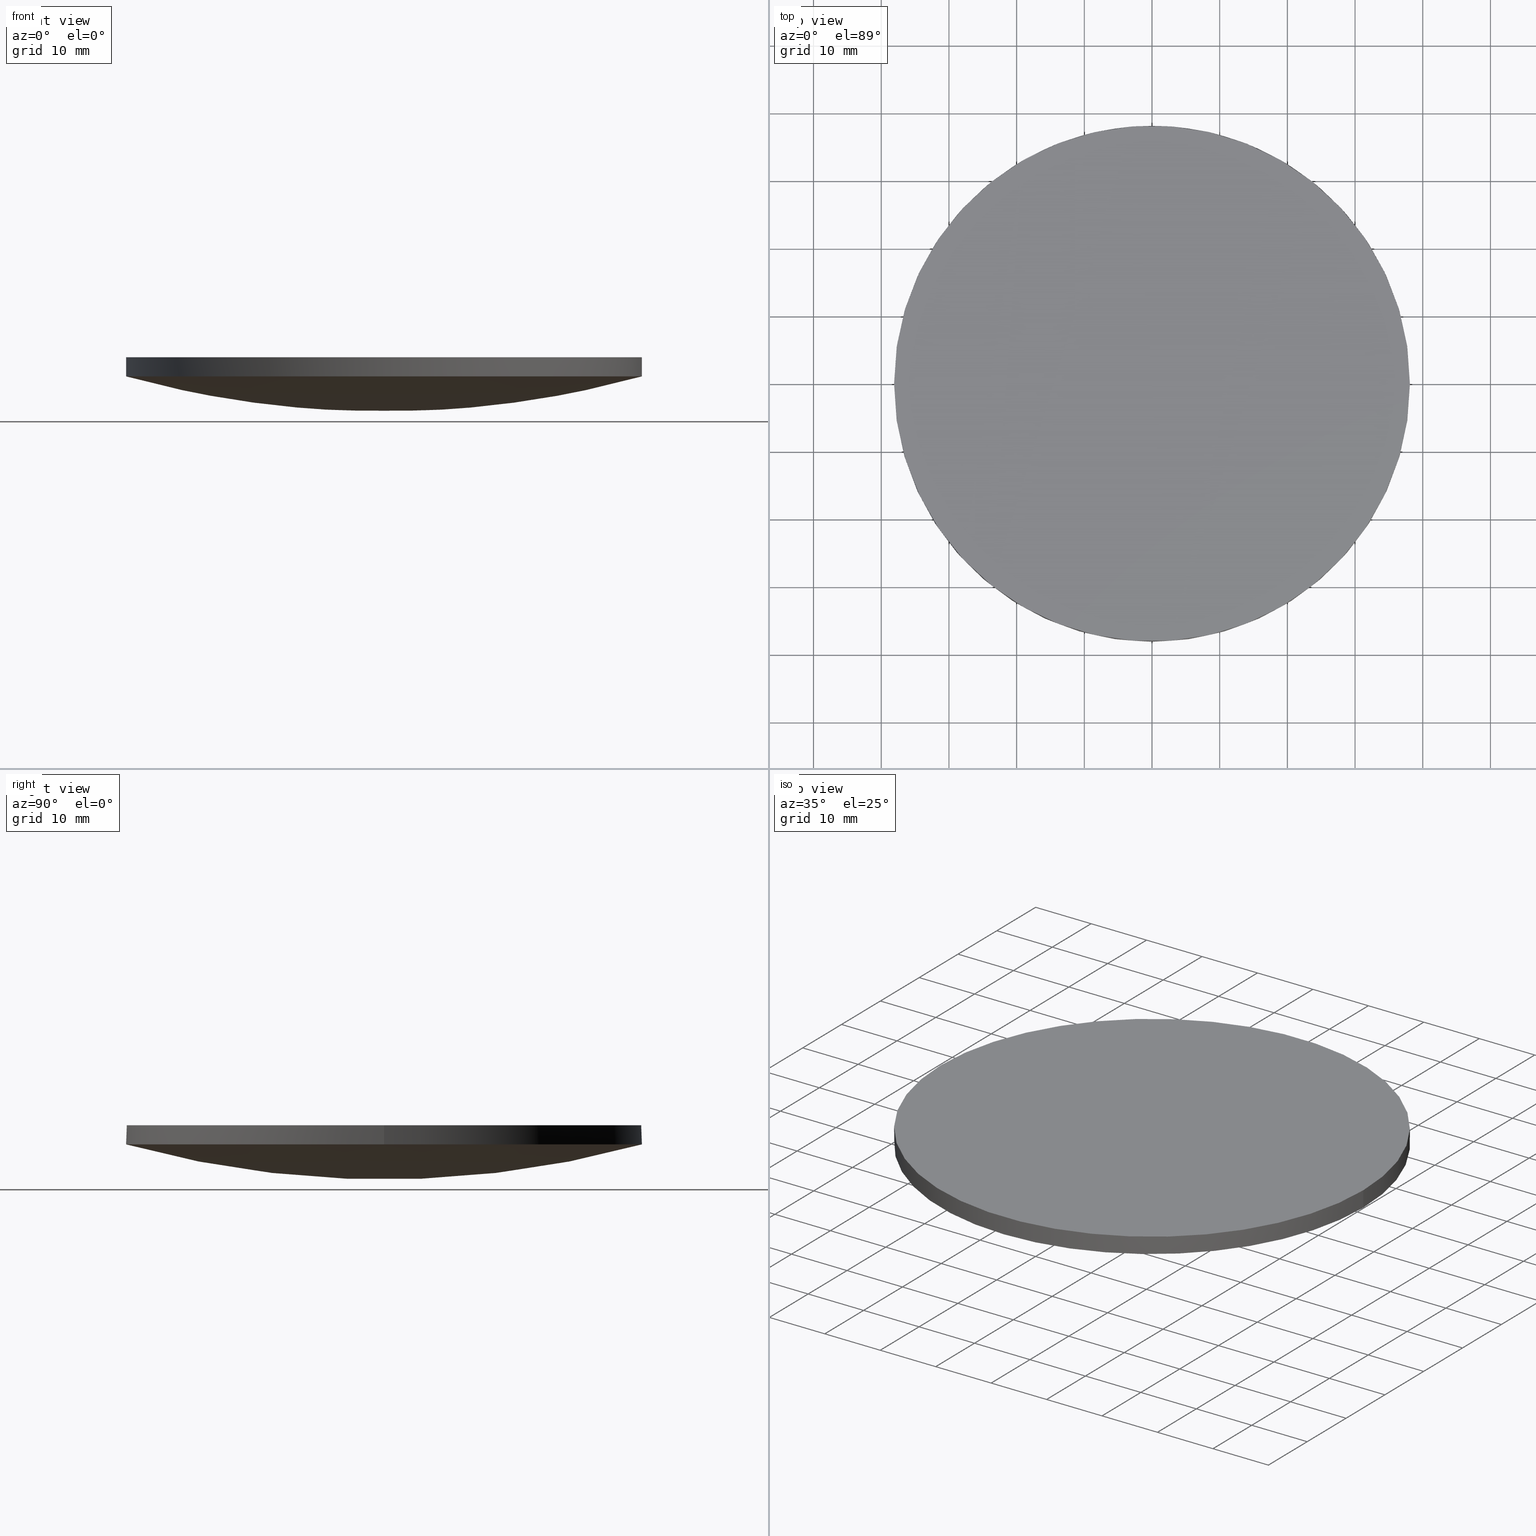
[diagram: canonical four-view strip — front | top / right | iso, engineering-drawing reading convention]
A machine part, canonical four-view strip (front | top / right | iso — engineering-drawing reading convention). The complete STEP part file that produces these views, byte-faithful:
ISO-10303-21;
HEADER;
FILE_DESCRIPTION (( 'STEP AP203' ),
    '1' );
FILE_NAME ('110-1719E UVFS pl-cx 76.2 F300.STEP',
    '2018-12-13T15:13:02',
    ( '' ),
    ( '' ),
    'SwSTEP 2.0',
    'SolidWorks 2017',
    '' );
FILE_SCHEMA (( 'CONFIG_CONTROL_DESIGN' ));
ENDSEC;

DATA;
#1 = ORIENTED_EDGE ( 'NONE', *, *, #95, .T. ) ;
#2 = LOCAL_TIME ( 17, 13, 2.000000000000000000, #154 ) ;
#3 = CC_DESIGN_SECURITY_CLASSIFICATION ( #152, ( #25 ) ) ;
#4 = CARTESIAN_POINT ( 'NONE',  ( -38.10000000000000900, 2.889547465351166000E-015, 5.176491833698710500 ) ) ;
#5 = COORDINATED_UNIVERSAL_TIME_OFFSET ( 2, 0, .AHEAD. ) ;
#6 = AXIS2_PLACEMENT_3D ( 'NONE', #21, #32, #171 ) ;
#7 = CC_DESIGN_PERSON_AND_ORGANIZATION_ASSIGNMENT ( #20, #70, ( #25 ) ) ;
#8 = MECHANICAL_CONTEXT ( 'NONE', #205, 'mechanical' ) ;
#9 = CARTESIAN_POINT ( 'NONE',  ( 38.80917554072667000, -13.17463516135470900, 3.493141128107163600 ) ) ;
#10 = FACE_OUTER_BOUND ( 'NONE', #180, .T. ) ;
#11 = CARTESIAN_POINT ( 'NONE',  ( 2.827845306181674800E-014, -38.54582829949171700, 5.300694108275216400 ) ) ;
#12 = APPROVAL_PERSON_ORGANIZATION ( #69, #163, #49 ) ;
#13 = CARTESIAN_POINT ( 'NONE',  ( -13.13738015587854400, 13.17463516135467600, -1.811732009904365200 ) ) ;
#14 = DIRECTION ( 'NONE',  ( 1.000000000000000000, 0.0000000000000000000, -2.276539994720219300E-017 ) ) ;
#15 = DIRECTION ( 'NONE',  ( 1.000000000000000000, 0.0000000000000000000, -4.553079989440438700E-017 ) ) ;
#16 = ORIENTED_EDGE ( 'NONE', *, *, #68, .F. ) ;
#17 = DATE_AND_TIME ( #78, #135 ) ;
#18 = CARTESIAN_POINT ( 'NONE',  ( 2.830399681397611900E-014, 38.09999999999993700, 5.176491833698705100 ) ) ;
#19 = CC_DESIGN_PERSON_AND_ORGANIZATION_ASSIGNMENT ( #35, #127, ( #79 ) ) ;
#20 = PERSON_AND_ORGANIZATION ( #72, #56 ) ;
#21 = CARTESIAN_POINT ( 'NONE',  ( -9.325873406851310200E-015, -1.776356839400250100E-015, 5.176491833698710500 ) ) ;
#22 = CC_DESIGN_APPROVAL ( #220, ( #152 ) ) ;
#23 = APPROVAL_PERSON_ORGANIZATION ( #132, #182, #30 ) ;
#24 = CARTESIAN_POINT ( 'NONE',  ( 38.09999999999999400, -1.776356839400250100E-015, 5.176491833698709600 ) ) ;
#25 = PRODUCT_DEFINITION_FORMATION_WITH_SPECIFIED_SOURCE ( 'ANY', '', #130, .NOT_KNOWN. ) ;
#26 = ORIENTED_EDGE ( 'NONE', *, *, #178, .T. ) ;
#27 = CARTESIAN_POINT ( 'NONE',  ( -9.325873406851310200E-015, -1.776356839400250100E-015, 5.176491833698710500 ) ) ;
#28 = ADVANCED_FACE ( 'NONE', ( #87 ), #71, .T. ) ;
#29 = ORIENTED_EDGE ( 'NONE', *, *, #209, .T. ) ;
#30 = APPROVAL_ROLE ( '' ) ;
#31 = SECURITY_CLASSIFICATION_LEVEL ( 'unclassified' ) ;
#32 = DIRECTION ( 'NONE',  ( -2.331176954593499900E-017, -1.086877198725570000E-033, -1.000000000000000000 ) ) ;
#33 = CC_DESIGN_APPROVAL ( #182, ( #25 ) ) ;
#34 = CARTESIAN_POINT ( 'NONE',  ( 38.09999999999999400, -1.776356839400250100E-015, 7.999999999999998200 ) ) ;
#35 = PERSON_AND_ORGANIZATION ( #72, #56 ) ;
#36 = VERTEX_POINT ( 'NONE', #24 ) ;
#37 = ORIENTED_EDGE ( 'NONE', *, *, #164, .T. ) ;
#38 = CARTESIAN_POINT ( 'NONE',  ( -36.90042726764757900, -38.54582829949171700, 10.34465813652077400 ) ) ;
#39 = DATE_AND_TIME ( #47, #93 ) ;
#40 = LINE ( 'NONE', #4, #105 ) ;
#41 = CARTESIAN_POINT ( 'NONE',  ( -9.260052435167430000E-015, -1.776356839400250100E-015, 8.000000000000000000 ) ) ;
#42 = DIRECTION ( 'NONE',  ( -2.331176954593499900E-017, -1.086877198725570000E-033, -1.000000000000000000 ) ) ;
#43 = CARTESIAN_POINT ( 'NONE',  ( -38.80917554072667000, 13.17463516135467700, 3.493141128107184900 ) ) ;
#44 = ADVANCED_FACE ( 'NONE', ( #199 ), #195, .T. ) ;
#45 = EDGE_CURVE ( 'NONE', #170, #74, #94, .T. ) ;
#46 = ADVANCED_FACE ( 'NONE', ( #165 ), #124, .T. ) ;
#47 = CALENDAR_DATE ( 2018, 13, 12 ) ;
#48 = DATE_AND_TIME ( #187, #202 ) ;
#49 = APPROVAL_ROLE ( '' ) ;
#50 = APPLICATION_CONTEXT ( 'configuration controlled 3d designs of mechanical parts and assemblies' ) ;
#51 = CARTESIAN_POINT ( 'NONE',  ( -9.260052435167430000E-015, -1.776356839400250100E-015, 8.000000000000000000 ) ) ;
#52 = PERSON_AND_ORGANIZATION_ROLE ( 'classification_officer' ) ;
#53 = VERTEX_POINT ( 'NONE', #155 ) ;
#54 = DATE_AND_TIME ( #143, #2 ) ;
#55 =( LENGTH_UNIT ( ) NAMED_UNIT ( * ) SI_UNIT ( .MILLI., .METRE. ) );
#56 = ORGANIZATION ( 'UNSPECIFIED', 'UNSPECIFIED', '' ) ;
#57 = CC_DESIGN_DATE_AND_TIME_ASSIGNMENT ( #54, #186, ( #152 ) ) ;
#58 = CARTESIAN_POINT ( 'NONE',  ( 0.0000000000000000000, -2.842170943040400100E-014, 142.8000000000000100 ) ) ;
#59 = CARTESIAN_POINT ( 'NONE',  ( 2.827845306181674200E-014, 38.54582829949168100, 5.300694108275244800 ) ) ;
#60 = CYLINDRICAL_SURFACE ( 'NONE', #134, 38.10000000000000100 ) ;
#61 = CARTESIAN_POINT ( 'NONE',  ( 0.0000000000000000000, -38.54582829949171700, 5.300694108275216400 ) ) ;
#62 = CARTESIAN_POINT ( 'NONE',  ( -24.86740508091239800, 38.54582829949168900, 6.992406322703711700 ) ) ;
#63 = CLOSED_SHELL ( 'NONE', ( #28, #147, #46, #67, #44 ) ) ;
#64 = ORIENTED_EDGE ( 'NONE', *, *, #164, .F. ) ;
#65 = COORDINATED_UNIVERSAL_TIME_OFFSET ( 2, 0, .AHEAD. ) ;
#66 = APPLICATION_PROTOCOL_DEFINITION ( 'international standard', 'config_control_design', 1994, #50 ) ;
#67 = ADVANCED_FACE ( 'NONE', ( #10 ), #200, .T. ) ;
#68 = EDGE_CURVE ( 'NONE', #191, #185, #136, .T. ) ;
#69 = PERSON_AND_ORGANIZATION ( #72, #56 ) ;
#70 = PERSON_AND_ORGANIZATION_ROLE ( 'design_supplier' ) ;
#71 =( BOUNDED_SURFACE ( )  B_SPLINE_SURFACE ( 3, 3, ( 
 ( #11, #222, #193, #151 ),
 ( #207, #75, #112, #9 ),
 ( #131, #92, #224, #116 ),
 ( #59, #99, #210, #198 ) ),
 .UNSPECIFIED., .F., .F., .T. ) 
 B_SPLINE_SURFACE_WITH_KNOTS ( ( 4, 4 ),
 ( 4, 4 ),
 ( 0.0000000000000000000, 1.000000000000000000 ),
 ( 0.0000000000000000000, 1.000000000000000000 ),
 .UNSPECIFIED. ) 
 GEOMETRIC_REPRESENTATION_ITEM ( )  RATIONAL_B_SPLINE_SURFACE ( (
 ( 1.000000000000000000, 0.9938577781780347800, 0.9938577781780347800, 1.000000000000000000),
 ( 0.9752535289062782600, 0.9692633053990815700, 0.9692633053990815700, 0.9752535289062782600),
 ( 0.9752535289062782600, 0.9692633053990815700, 0.9692633053990815700, 0.9752535289062782600),
 ( 1.000000000000000000, 0.9938577781780347800, 0.9938577781780347800, 1.000000000000000000) ) ) 
 REPRESENTATION_ITEM ( '' )  SURFACE ( )  );
#72 = PERSON ( 'UNSPECIFIED', 'UNSPECIFIED', 'UNSPECIFIED', ('UNSPECIFIED'), ('UNSPECIFIED'), ('UNSPECIFIED') ) ;
#73 =( NAMED_UNIT ( * ) SI_UNIT ( $, .STERADIAN. ) SOLID_ANGLE_UNIT ( ) );
#74 = VERTEX_POINT ( 'NONE', #18 ) ;
#75 = CARTESIAN_POINT ( 'NONE',  ( 13.13738015587856700, -13.17463516135471300, -1.811732009904391000 ) ) ;
#76 = CIRCLE ( 'NONE', #6, 38.10000000000000100 ) ;
#77 = EDGE_LOOP ( 'NONE', ( #129, #221, #214 ) ) ;
#78 = CALENDAR_DATE ( 2018, 13, 12 ) ;
#79 = PRODUCT_DEFINITION ( 'UNKNOWN', '', #25, #176 ) ;
#80 = DIRECTION ( 'NONE',  ( 2.331176954593499900E-017, 1.086877198725570000E-033, 1.000000000000000000 ) ) ;
#81 = ORIENTED_EDGE ( 'NONE', *, *, #68, .T. ) ;
#82 = CARTESIAN_POINT ( 'NONE',  ( 38.09999999999999400, -1.776356839400250100E-015, 5.176491833698708700 ) ) ;
#83 = DIRECTION ( 'NONE',  ( 1.000000000000000000, 0.0000000000000000000, -2.276539994720219300E-017 ) ) ;
#84 = APPROVAL_PERSON_ORGANIZATION ( #97, #220, #166 ) ;
#85 = DIRECTION ( 'NONE',  ( 1.000000000000000000, 0.0000000000000000000, -2.276539994720219300E-017 ) ) ;
#86 = PERSON_AND_ORGANIZATION ( #72, #56 ) ;
#87 = FACE_OUTER_BOUND ( 'NONE', #142, .T. ) ;
#88 = PERSON_AND_ORGANIZATION ( #72, #56 ) ;
#89 = APPROVAL_STATUS ( 'not_yet_approved' ) ;
#90 = PRODUCT_RELATED_PRODUCT_CATEGORY ( 'detail', '', ( #130 ) ) ;
#91 = DIRECTION ( 'NONE',  ( -2.331176954593499900E-017, -1.086877198725570000E-033, -1.000000000000000000 ) ) ;
#92 = CARTESIAN_POINT ( 'NONE',  ( 13.13738015587856400, 13.17463516135467600, -1.811732009904365200 ) ) ;
#93 = LOCAL_TIME ( 17, 13, 2.000000000000000000, #5 ) ;
#94 = CIRCLE ( 'NONE', #172, 142.7999999999999800 ) ;
#95 = EDGE_CURVE ( 'NONE', #36, #191, #227, .T. ) ;
#96 = DIRECTION ( 'NONE',  ( 0.0000000000000000000, 0.0000000000000000000, 1.000000000000000000 ) ) ;
#97 = PERSON_AND_ORGANIZATION ( #72, #56 ) ;
#98 = CC_DESIGN_APPROVAL ( #163, ( #79 ) ) ;
#99 = CARTESIAN_POINT ( 'NONE',  ( 12.49124554116607500, 38.54582829949168900, 5.300694108275247500 ) ) ;
#100 = ADVANCED_BREP_SHAPE_REPRESENTATION ( '110-1719E UVFS pl-cx 76.2 F300', ( #114, #113 ), #234 ) ;
#101 = CARTESIAN_POINT ( 'NONE',  ( -9.325873406851310200E-015, -1.776356839400250100E-015, 5.176491833698709600 ) ) ;
#102 = CARTESIAN_POINT ( 'NONE',  ( -36.90042726764757200, 38.54582829949168100, 10.34465813652080100 ) ) ;
#103 = ORIENTED_EDGE ( 'NONE', *, *, #115, .F. ) ;
#104 = DIRECTION ( 'NONE',  ( 2.331176954593499900E-017, 1.086877198725570000E-033, 1.000000000000000000 ) ) ;
#105 = VECTOR ( 'NONE', #104, 1000.000000000000000 ) ;
#106 = APPROVAL_STATUS ( 'not_yet_approved' ) ;
#107 = APPROVAL_DATE_TIME ( #39, #163 ) ;
#108 = PERSON_AND_ORGANIZATION_ROLE ( 'creator' ) ;
#109 = CARTESIAN_POINT ( 'NONE',  ( 0.0000000000000000000, 0.0000000000000000000, 0.0000000000000000000 ) ) ;
#110 = APPLICATION_PROTOCOL_DEFINITION ( 'international standard', 'config_control_design', 1994, #205 ) ;
#111 = CIRCLE ( 'NONE', #197, 38.10000000000000100 ) ;
#112 = CARTESIAN_POINT ( 'NONE',  ( 26.15372125714176100, -13.17463516135471300, -0.03251260363729612700 ) ) ;
#113 = AXIS2_PLACEMENT_3D ( 'NONE', #109, #218, #219 ) ;
#114 = MANIFOLD_SOLID_BREP ( 'Imported1', #63 ) ;
#115 = EDGE_CURVE ( 'NONE', #53, #74, #158, .T. ) ;
#116 = CARTESIAN_POINT ( 'NONE',  ( 38.80917554072666300, 13.17463516135467700, 3.493141128107187100 ) ) ;
#117 = ORIENTED_EDGE ( 'NONE', *, *, #209, .F. ) ;
#118 = CC_DESIGN_DATE_AND_TIME_ASSIGNMENT ( #48, #149, ( #79 ) ) ;
#119 = CARTESIAN_POINT ( 'NONE',  ( -26.15372125714175800, -13.17463516135471300, -0.03251260363730351000 ) ) ;
#120 = CARTESIAN_POINT ( 'NONE',  ( -12.49124554116605900, -38.54582829949172400, 5.300694108275216400 ) ) ;
#121 = AXIS2_PLACEMENT_3D ( 'NONE', #137, #80, #231 ) ;
#122 = CALENDAR_DATE ( 2018, 13, 12 ) ;
#123 = DIRECTION ( 'NONE',  ( 2.331176954593499900E-017, 1.086877198725570000E-033, 1.000000000000000000 ) ) ;
#124 =( BOUNDED_SURFACE ( )  B_SPLINE_SURFACE ( 3, 3, ( 
 ( #38, #157, #120, #61 ),
 ( #216, #119, #183, #179 ),
 ( #43, #235, #13, #184 ),
 ( #102, #62, #160, #139 ) ),
 .UNSPECIFIED., .F., .F., .F. ) 
 B_SPLINE_SURFACE_WITH_KNOTS ( ( 4, 4 ),
 ( 4, 4 ),
 ( 0.0000000000000000000, 1.000000000000000000 ),
 ( 0.0000000000000000000, 1.000000000000000000 ),
 .UNSPECIFIED. ) 
 GEOMETRIC_REPRESENTATION_ITEM ( )  RATIONAL_B_SPLINE_SURFACE ( (
 ( 1.000000000000000000, 0.9938577781780347800, 0.9938577781780347800, 1.000000000000000000),
 ( 0.9752535289062782600, 0.9692633053990815700, 0.9692633053990815700, 0.9752535289062782600),
 ( 0.9752535289062782600, 0.9692633053990815700, 0.9692633053990815700, 0.9752535289062782600),
 ( 1.000000000000000000, 0.9938577781780347800, 0.9938577781780347800, 1.000000000000000000) ) ) 
 REPRESENTATION_ITEM ( '' )  SURFACE ( )  );
#125 = EDGE_CURVE ( 'NONE', #170, #53, #111, .T. ) ;
#126 = CARTESIAN_POINT ( 'NONE',  ( -38.10000000000000900, 2.889547465351166000E-015, 8.000000000000001800 ) ) ;
#127 = PERSON_AND_ORGANIZATION_ROLE ( 'creator' ) ;
#128 = PERSON_AND_ORGANIZATION_ROLE ( 'design_owner' ) ;
#129 = ORIENTED_EDGE ( 'NONE', *, *, #45, .F. ) ;
#130 = PRODUCT ( '110-1719E UVFS pl-cx 76.2 F300', '110-1719E UVFS pl-cx 76.2 F300', '', ( #8 ) ) ;
#131 = CARTESIAN_POINT ( 'NONE',  ( 2.974121250510412600E-014, 13.17463516135467700, -1.811732009904367700 ) ) ;
#132 = PERSON_AND_ORGANIZATION ( #72, #56 ) ;
#133 = ORIENTED_EDGE ( 'NONE', *, *, #95, .F. ) ;
#134 = AXIS2_PLACEMENT_3D ( 'NONE', #101, #123, #83 ) ;
#135 = LOCAL_TIME ( 17, 13, 2.000000000000000000, #229 ) ;
#136 = CIRCLE ( 'NONE', #167, 38.10000000000000100 ) ;
#137 = CARTESIAN_POINT ( 'NONE',  ( -9.325873406851310200E-015, -1.776356839400250100E-015, 5.176491833698709600 ) ) ;
#138 = ORIENTED_EDGE ( 'NONE', *, *, #45, .T. ) ;
#139 = CARTESIAN_POINT ( 'NONE',  ( 0.0000000000000000000, 38.54582829949168100, 5.300694108275246600 ) ) ;
#140 = CARTESIAN_POINT ( 'NONE',  ( -9.325873406851310200E-015, -1.776356839400250100E-015, 5.176491833698710500 ) ) ;
#141 = DIRECTION ( 'NONE',  ( -2.331176954593499900E-017, -1.086877198725570000E-033, -1.000000000000000000 ) ) ;
#142 = EDGE_LOOP ( 'NONE', ( #228, #138, #29 ) ) ;
#143 = CALENDAR_DATE ( 2018, 13, 12 ) ;
#144 = CARTESIAN_POINT ( 'NONE',  ( 2.830399681397611900E-014, -38.09999999999996600, 5.176491833698705100 ) ) ;
#145 = SHAPE_DEFINITION_REPRESENTATION ( #226, #100 ) ;
#146 = LOCAL_TIME ( 17, 13, 2.000000000000000000, #65 ) ;
#147 = ADVANCED_FACE ( 'NONE', ( #213 ), #60, .T. ) ;
#148 = UNCERTAINTY_MEASURE_WITH_UNIT (LENGTH_MEASURE( 1.000000000000000100E-005 ), #55, 'distance_accuracy_value', 'NONE');
#149 = DATE_TIME_ROLE ( 'creation_date' ) ;
#150 = VECTOR ( 'NONE', #181, 1000.000000000000000 ) ;
#151 = CARTESIAN_POINT ( 'NONE',  ( 36.90042726764757900, -38.54582829949171700, 10.34465813652077900 ) ) ;
#152 = SECURITY_CLASSIFICATION ( '', '', #31 ) ;
#153 = ORIENTED_EDGE ( 'NONE', *, *, #212, .F. ) ;
#154 = COORDINATED_UNIVERSAL_TIME_OFFSET ( 2, 0, .AHEAD. ) ;
#155 = CARTESIAN_POINT ( 'NONE',  ( -38.10000000000000900, 2.889547465351166000E-015, 5.176491833698711400 ) ) ;
#156 = DIRECTION ( 'NONE',  ( 1.000000000000000000, 0.0000000000000000000, -0.0000000000000000000 ) ) ;
#157 = CARTESIAN_POINT ( 'NONE',  ( -24.86740508091240500, -38.54582829949172400, 6.992406322703684100 ) ) ;
#158 = CIRCLE ( 'NONE', #225, 38.10000000000000100 ) ;
#159 = DIRECTION ( 'NONE',  ( 0.0000000000000000000, -1.000000000000000000, 0.0000000000000000000 ) ) ;
#160 = CARTESIAN_POINT ( 'NONE',  ( -12.49124554116605500, 38.54582829949168900, 5.300694108275246600 ) ) ;
#161 = ORIENTED_EDGE ( 'NONE', *, *, #178, .F. ) ;
#162 = DIRECTION ( 'NONE',  ( 1.000000000000000000, 0.0000000000000000000, 2.056625150099659900E-016 ) ) ;
#163 = APPROVAL ( #106, 'UNSPECIFIED' ) ;
#164 = EDGE_CURVE ( 'NONE', #53, #185, #40, .T. ) ;
#165 = FACE_OUTER_BOUND ( 'NONE', #77, .T. ) ;
#166 = APPROVAL_ROLE ( '' ) ;
#167 = AXIS2_PLACEMENT_3D ( 'NONE', #41, #201, #15 ) ;
#168 = DIRECTION ( 'NONE',  ( 1.000000000000000000, 0.0000000000000000000, -2.276539994720219300E-017 ) ) ;
#169 = CIRCLE ( 'NONE', #217, 38.10000000000000100 ) ;
#170 = VERTEX_POINT ( 'NONE', #144 ) ;
#171 = DIRECTION ( 'NONE',  ( 1.000000000000000000, 0.0000000000000000000, -2.276539994720219300E-017 ) ) ;
#172 = AXIS2_PLACEMENT_3D ( 'NONE', #58, #162, #159 ) ;
#173 = EDGE_LOOP ( 'NONE', ( #16, #161 ) ) ;
#174 = DATE_AND_TIME ( #122, #146 ) ;
#175 = AXIS2_PLACEMENT_3D ( 'NONE', #51, #91, #188 ) ;
#176 = DESIGN_CONTEXT ( 'detailed design', #50, 'design' ) ;
#177 = AXIS2_PLACEMENT_3D ( 'NONE', #230, #96, #156 ) ;
#178 = EDGE_CURVE ( 'NONE', #185, #191, #206, .T. ) ;
#179 = CARTESIAN_POINT ( 'NONE',  ( 0.0000000000000000000, -13.17463516135470900, -1.811732009904391600 ) ) ;
#180 = EDGE_LOOP ( 'NONE', ( #64, #194, #153, #1, #81 ) ) ;
#181 = DIRECTION ( 'NONE',  ( 2.331176954593499900E-017, 1.086877198725570000E-033, 1.000000000000000000 ) ) ;
#182 = APPROVAL ( #89, 'UNSPECIFIED' ) ;
#183 = CARTESIAN_POINT ( 'NONE',  ( -13.13738015587854600, -13.17463516135471300, -1.811732009904391400 ) ) ;
#184 = CARTESIAN_POINT ( 'NONE',  ( 0.0000000000000000000, 13.17463516135467700, -1.811732009904365700 ) ) ;
#185 = VERTEX_POINT ( 'NONE', #126 ) ;
#186 = DATE_TIME_ROLE ( 'classification_date' ) ;
#187 = CALENDAR_DATE ( 2018, 13, 12 ) ;
#188 = DIRECTION ( 'NONE',  ( 1.000000000000000000, 0.0000000000000000000, -4.553079989440438700E-017 ) ) ;
#189 =( NAMED_UNIT ( * ) PLANE_ANGLE_UNIT ( ) SI_UNIT ( $, .RADIAN. ) );
#190 = CARTESIAN_POINT ( 'NONE',  ( -9.325873406851310200E-015, -1.776356839400250100E-015, 5.176491833698710500 ) ) ;
#191 = VERTEX_POINT ( 'NONE', #34 ) ;
#192 = APPROVAL_DATE_TIME ( #17, #220 ) ;
#193 = CARTESIAN_POINT ( 'NONE',  ( 24.86740508091241300, -38.54582829949172400, 6.992406322703691200 ) ) ;
#194 = ORIENTED_EDGE ( 'NONE', *, *, #125, .F. ) ;
#195 = PLANE ( 'NONE',  #177 ) ;
#196 = CC_DESIGN_PERSON_AND_ORGANIZATION_ASSIGNMENT ( #88, #108, ( #25 ) ) ;
#197 = AXIS2_PLACEMENT_3D ( 'NONE', #140, #141, #85 ) ;
#198 = CARTESIAN_POINT ( 'NONE',  ( 36.90042726764757200, 38.54582829949168100, 10.34465813652080400 ) ) ;
#199 = FACE_OUTER_BOUND ( 'NONE', #173, .T. ) ;
#200 = CYLINDRICAL_SURFACE ( 'NONE', #121, 38.10000000000000100 ) ;
#201 = DIRECTION ( 'NONE',  ( -2.331176954593499900E-017, -1.086877198725570000E-033, -1.000000000000000000 ) ) ;
#202 = LOCAL_TIME ( 17, 13, 2.000000000000000000, #232 ) ;
#203 = APPROVAL_STATUS ( 'not_yet_approved' ) ;
#204 = DIRECTION ( 'NONE',  ( -2.331176954593499900E-017, -1.086877198725570000E-033, -1.000000000000000000 ) ) ;
#205 = APPLICATION_CONTEXT ( 'configuration controlled 3d designs of mechanical parts and assemblies' ) ;
#206 = CIRCLE ( 'NONE', #175, 38.10000000000000100 ) ;
#207 = CARTESIAN_POINT ( 'NONE',  ( 2.974121250510413300E-014, -13.17463516135470900, -1.811732009904393400 ) ) ;
#208 = EDGE_LOOP ( 'NONE', ( #103, #37, #26, #133, #117 ) ) ;
#209 = EDGE_CURVE ( 'NONE', #74, #36, #169, .T. ) ;
#210 = CARTESIAN_POINT ( 'NONE',  ( 24.86740508091240900, 38.54582829949168900, 6.992406322703717900 ) ) ;
#211 = PERSON_AND_ORGANIZATION ( #72, #56 ) ;
#212 = EDGE_CURVE ( 'NONE', #36, #170, #76, .T. ) ;
#213 = FACE_OUTER_BOUND ( 'NONE', #208, .T. ) ;
#214 = ORIENTED_EDGE ( 'NONE', *, *, #115, .T. ) ;
#215 = APPROVAL_DATE_TIME ( #174, #182 ) ;
#216 = CARTESIAN_POINT ( 'NONE',  ( -38.80917554072667700, -13.17463516135470900, 3.493141128107159200 ) ) ;
#217 = AXIS2_PLACEMENT_3D ( 'NONE', #190, #204, #168 ) ;
#218 = DIRECTION ( 'NONE',  ( 0.0000000000000000000, 0.0000000000000000000, 1.000000000000000000 ) ) ;
#219 = DIRECTION ( 'NONE',  ( 1.000000000000000000, 0.0000000000000000000, 0.0000000000000000000 ) ) ;
#220 = APPROVAL ( #203, 'UNSPECIFIED' ) ;
#221 = ORIENTED_EDGE ( 'NONE', *, *, #125, .T. ) ;
#222 = CARTESIAN_POINT ( 'NONE',  ( 12.49124554116607700, -38.54582829949172400, 5.300694108275219000 ) ) ;
#223 = CC_DESIGN_PERSON_AND_ORGANIZATION_ASSIGNMENT ( #211, #52, ( #152 ) ) ;
#224 = CARTESIAN_POINT ( 'NONE',  ( 26.15372125714175800, 13.17463516135467600, -0.03251260363727141000 ) ) ;
#225 = AXIS2_PLACEMENT_3D ( 'NONE', #27, #42, #14 ) ;
#226 = PRODUCT_DEFINITION_SHAPE ( 'NONE', 'NONE',  #79 ) ;
#227 = LINE ( 'NONE', #82, #150 ) ;
#228 = ORIENTED_EDGE ( 'NONE', *, *, #212, .T. ) ;
#229 = COORDINATED_UNIVERSAL_TIME_OFFSET ( 2, 0, .AHEAD. ) ;
#230 = CARTESIAN_POINT ( 'NONE',  ( 0.0000000000000000000, 77.92799999999999700, 8.000000000000000000 ) ) ;
#231 = DIRECTION ( 'NONE',  ( 1.000000000000000000, 0.0000000000000000000, -2.276539994720219300E-017 ) ) ;
#232 = COORDINATED_UNIVERSAL_TIME_OFFSET ( 2, 0, .AHEAD. ) ;
#233 = CC_DESIGN_PERSON_AND_ORGANIZATION_ASSIGNMENT ( #86, #128, ( #130 ) ) ;
#234 =( GEOMETRIC_REPRESENTATION_CONTEXT ( 3 ) GLOBAL_UNCERTAINTY_ASSIGNED_CONTEXT ( ( #148 ) ) GLOBAL_UNIT_ASSIGNED_CONTEXT ( ( #55, #189, #73 ) ) REPRESENTATION_CONTEXT ( 'NONE', 'WORKASPACE' ) );
#235 = CARTESIAN_POINT ( 'NONE',  ( -26.15372125714175800, 13.17463516135467600, -0.03251260363727791200 ) ) ;
ENDSEC;
END-ISO-10303-21;
